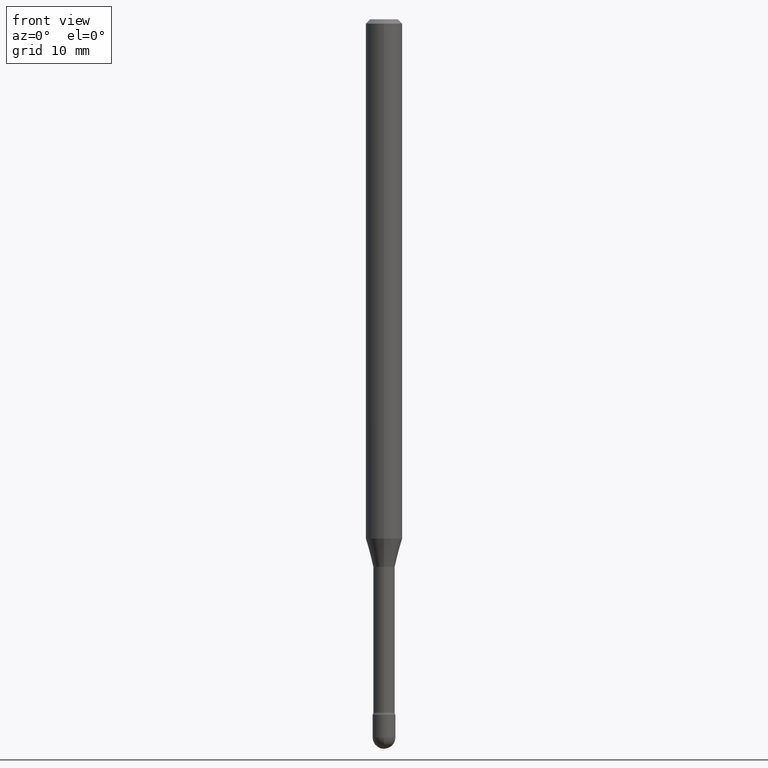
[diagram: clean part render]
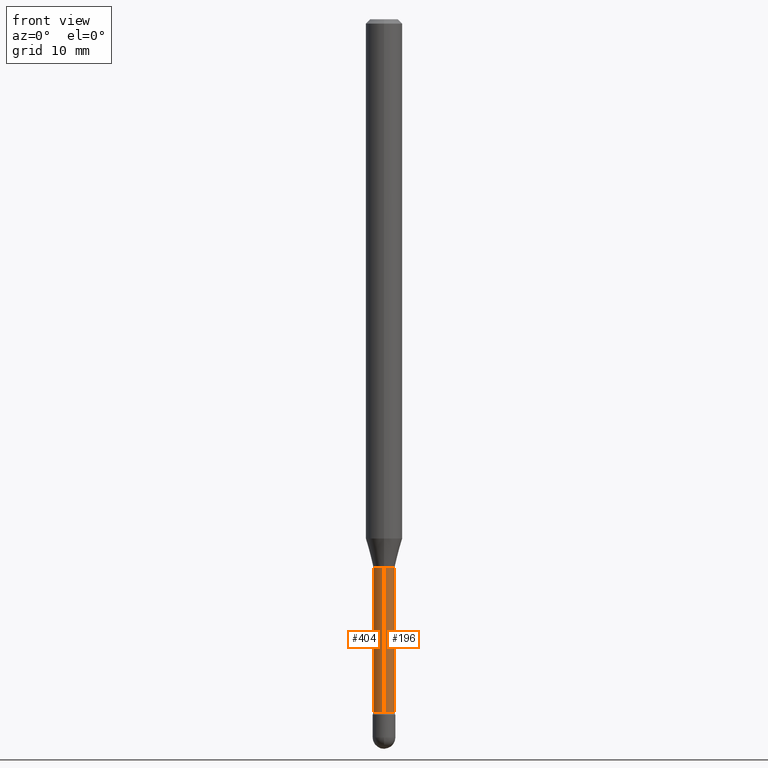
[diagram: same view with one multi-face feature highlighted, each face labeled with its STEP entity id]
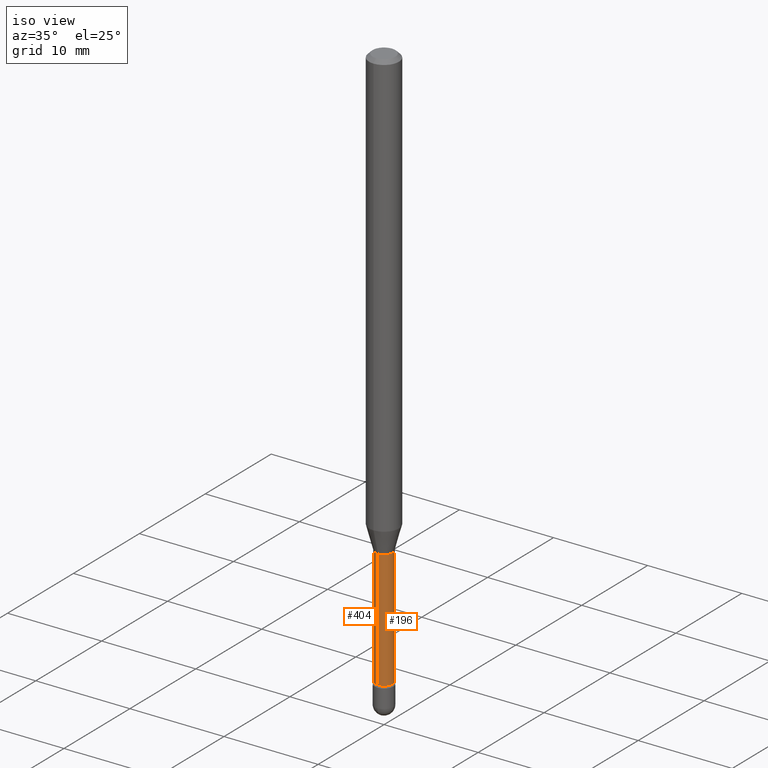
[diagram: same view with one multi-face feature highlighted, each face labeled with its STEP entity id]
A machine part, front view. The highlighted faces form ONE feature: a constant-radius fillet chain: 2 tangent blend faces with common blend radius 0.9309 mm. The faces share edges in the B-rep.
A second angle (iso view) of the same feature is appended — it is thin or edge-on in the first view.
Their STEP definitions:
[1] entity #404 (Cylinder):
#9 = LINE ( 'NONE', #546, #360 ) ;
#14 = FACE_OUTER_BOUND ( 'NONE', #337, .T. ) ;
#17 = DIRECTION ( 'NONE',  ( -6.982962677686265922E-15, -1.000000000000000000, 0.000000000000000000 ) ) ;
#48 = AXIS2_PLACEMENT_3D ( 'NONE', #266, #356, #17 ) ;
#52 = DIRECTION ( 'NONE',  ( -6.982962677686265922E-15, -1.000000000000000000, 3.491533721594072411E-15 ) ) ;
#53 = CARTESIAN_POINT ( 'NONE',  ( 2.604139126561350589E-16, 0.03664999999999345864, -1.877974787463811079 ) ) ;
#65 = EDGE_CURVE ( 'NONE', #421, #102, #559, .T. ) ;
#77 = EDGE_CURVE ( 'NONE', #126, #555, #435, .T. ) ;
#86 = AXIS2_PLACEMENT_3D ( 'NONE', #298, #390, #52 ) ;
#99 = DIRECTION ( 'NONE',  ( -2.445432227505668971E-29, 3.491533721594072411E-15, 1.000000000000000000 ) ) ;
#101 = CARTESIAN_POINT ( 'NONE',  ( 4.592460067707113754E-29, -6.557012298733358393E-15, -1.877974787463811079 ) ) ;
#102 = VERTEX_POINT ( 'NONE', #222 ) ;
#126 = VERTEX_POINT ( 'NONE', #53 ) ;
#137 = DIRECTION ( 'NONE',  ( -2.445432227505668691E-29, 3.491533721594072806E-15, 1.000000000000000000 ) ) ;
#158 = DIRECTION ( 'NONE',  ( -2.445432227505668691E-29, 3.491533721594072806E-15, 1.000000000000000000 ) ) ;
#166 = VECTOR ( 'NONE', #137, 39.37007874015748143 ) ;
#176 = LINE ( 'NONE', #259, #166 ) ;
#178 = CYLINDRICAL_SURFACE ( 'NONE', #86, 0.03665000000000002978 ) ;
#181 = CARTESIAN_POINT ( 'NONE',  ( -2.559255821371557905E-16, -0.03665000000000656621, -1.877974787463811079 ) ) ;
#192 = AXIS2_PLACEMENT_3D ( 'NONE', #101, #99, #264 ) ;
#222 = CARTESIAN_POINT ( 'NONE',  ( -2.559255821371438589E-16, -0.03665000000000834257, -2.374939137763241614 ) ) ;
#259 = CARTESIAN_POINT ( 'NONE',  ( -2.559255821372018402E-16, -0.03665000000000002978, 6.060381097876689444E-16 ) ) ;
#264 = DIRECTION ( 'NONE',  ( -6.982962677686266711E-15, -1.000000000000000000, 0.000000000000000000 ) ) ;
#266 = CARTESIAN_POINT ( 'NONE',  ( 5.807752705850756836E-29, -8.292180086233907594E-15, -2.374939137763241614 ) ) ;
#275 = ORIENTED_EDGE ( 'NONE', *, *, #65, .T. ) ;
#294 = ORIENTED_EDGE ( 'NONE', *, *, #77, .F. ) ;
#298 = CARTESIAN_POINT ( 'NONE',  ( -1.169113584055446105E-44, 1.669184350826100908E-30, 4.780733988912460139E-16 ) ) ;
#305 = CARTESIAN_POINT ( 'NONE',  ( 2.687627898013162533E-16, 0.03664999999999175168, -2.374939137763241614 ) ) ;
#335 = ORIENTED_EDGE ( 'NONE', *, *, #562, .F. ) ;
#337 = EDGE_LOOP ( 'NONE', ( #335, #275, #424, #294 ) ) ;
#350 = EDGE_CURVE ( 'NONE', #102, #555, #176, .T. ) ;
#356 = DIRECTION ( 'NONE',  ( -2.445432227505668971E-29, 3.491533721594072411E-15, 1.000000000000000000 ) ) ;
#360 = VECTOR ( 'NONE', #158, 39.37007874015748143 ) ;
#390 = DIRECTION ( 'NONE',  ( -2.445432227505668971E-29, 3.491533721594072411E-15, 1.000000000000000000 ) ) ;
#404 = ADVANCED_FACE ( 'NONE', ( #14 ), #178, .T. ) ;
#421 = VERTEX_POINT ( 'NONE', #305 ) ;
#424 = ORIENTED_EDGE ( 'NONE', *, *, #350, .T. ) ;
#435 = CIRCLE ( 'NONE', #192, 0.03665000000000000896 ) ;
#546 = CARTESIAN_POINT ( 'NONE',  ( 2.604139126560768804E-16, 0.03665000000000002978, 3.501086879948231821E-16 ) ) ;
#555 = VERTEX_POINT ( 'NONE', #181 ) ;
#559 = CIRCLE ( 'NONE', #48, 0.03665000000000004365 ) ;
#562 = EDGE_CURVE ( 'NONE', #421, #126, #9, .T. ) ;
[2] entity #196 (Cylinder):
#9 = LINE ( 'NONE', #546, #360 ) ;
#53 = CARTESIAN_POINT ( 'NONE',  ( 2.604139126561350589E-16, 0.03664999999999345864, -1.877974787463811079 ) ) ;
#67 = AXIS2_PLACEMENT_3D ( 'NONE', #150, #393, #489 ) ;
#91 = EDGE_CURVE ( 'NONE', #102, #421, #97, .T. ) ;
#97 = CIRCLE ( 'NONE', #67, 0.03665000000000004365 ) ;
#102 = VERTEX_POINT ( 'NONE', #222 ) ;
#126 = VERTEX_POINT ( 'NONE', #53 ) ;
#137 = DIRECTION ( 'NONE',  ( -2.445432227505668691E-29, 3.491533721594072806E-15, 1.000000000000000000 ) ) ;
#148 = EDGE_LOOP ( 'NONE', ( #332, #403, #408, #516 ) ) ;
#149 = AXIS2_PLACEMENT_3D ( 'NONE', #372, #163, #283 ) ;
#150 = CARTESIAN_POINT ( 'NONE',  ( 5.807752705850756836E-29, -8.292180086233907594E-15, -2.374939137763241614 ) ) ;
#153 = CYLINDRICAL_SURFACE ( 'NONE', #149, 0.03665000000000002978 ) ;
#158 = DIRECTION ( 'NONE',  ( -2.445432227505668691E-29, 3.491533721594072806E-15, 1.000000000000000000 ) ) ;
#163 = DIRECTION ( 'NONE',  ( -2.445432227505668971E-29, 3.491533721594072411E-15, 1.000000000000000000 ) ) ;
#166 = VECTOR ( 'NONE', #137, 39.37007874015748143 ) ;
#176 = LINE ( 'NONE', #259, #166 ) ;
#181 = CARTESIAN_POINT ( 'NONE',  ( -2.559255821371557905E-16, -0.03665000000000656621, -1.877974787463811079 ) ) ;
#196 = ADVANCED_FACE ( 'NONE', ( #242 ), #153, .T. ) ;
#222 = CARTESIAN_POINT ( 'NONE',  ( -2.559255821371438589E-16, -0.03665000000000834257, -2.374939137763241614 ) ) ;
#242 = FACE_OUTER_BOUND ( 'NONE', #148, .T. ) ;
#259 = CARTESIAN_POINT ( 'NONE',  ( -2.559255821372018402E-16, -0.03665000000000002978, 6.060381097876689444E-16 ) ) ;
#283 = DIRECTION ( 'NONE',  ( -6.982962677686265922E-15, -1.000000000000000000, 3.491533721594072411E-15 ) ) ;
#289 = CIRCLE ( 'NONE', #378, 0.03665000000000000896 ) ;
#293 = EDGE_CURVE ( 'NONE', #555, #126, #289, .T. ) ;
#305 = CARTESIAN_POINT ( 'NONE',  ( 2.687627898013162533E-16, 0.03664999999999175168, -2.374939137763241614 ) ) ;
#332 = ORIENTED_EDGE ( 'NONE', *, *, #91, .T. ) ;
#350 = EDGE_CURVE ( 'NONE', #102, #555, #176, .T. ) ;
#360 = VECTOR ( 'NONE', #158, 39.37007874015748143 ) ;
#372 = CARTESIAN_POINT ( 'NONE',  ( -1.169113584055446105E-44, 1.669184350826100908E-30, 4.780733988912460139E-16 ) ) ;
#378 = AXIS2_PLACEMENT_3D ( 'NONE', #413, #462, #385 ) ;
#385 = DIRECTION ( 'NONE',  ( -6.982962677686266711E-15, -1.000000000000000000, 0.000000000000000000 ) ) ;
#393 = DIRECTION ( 'NONE',  ( -2.445432227505668971E-29, 3.491533721594072411E-15, 1.000000000000000000 ) ) ;
#403 = ORIENTED_EDGE ( 'NONE', *, *, #562, .T. ) ;
#408 = ORIENTED_EDGE ( 'NONE', *, *, #293, .F. ) ;
#413 = CARTESIAN_POINT ( 'NONE',  ( 4.592460067707113754E-29, -6.557012298733358393E-15, -1.877974787463811079 ) ) ;
#421 = VERTEX_POINT ( 'NONE', #305 ) ;
#462 = DIRECTION ( 'NONE',  ( -2.445432227505668971E-29, 3.491533721594072411E-15, 1.000000000000000000 ) ) ;
#489 = DIRECTION ( 'NONE',  ( -6.982962677686265922E-15, -1.000000000000000000, 0.000000000000000000 ) ) ;
#516 = ORIENTED_EDGE ( 'NONE', *, *, #350, .F. ) ;
#546 = CARTESIAN_POINT ( 'NONE',  ( 2.604139126560768804E-16, 0.03665000000000002978, 3.501086879948231821E-16 ) ) ;
#555 = VERTEX_POINT ( 'NONE', #181 ) ;
#562 = EDGE_CURVE ( 'NONE', #421, #126, #9, .T. ) ;